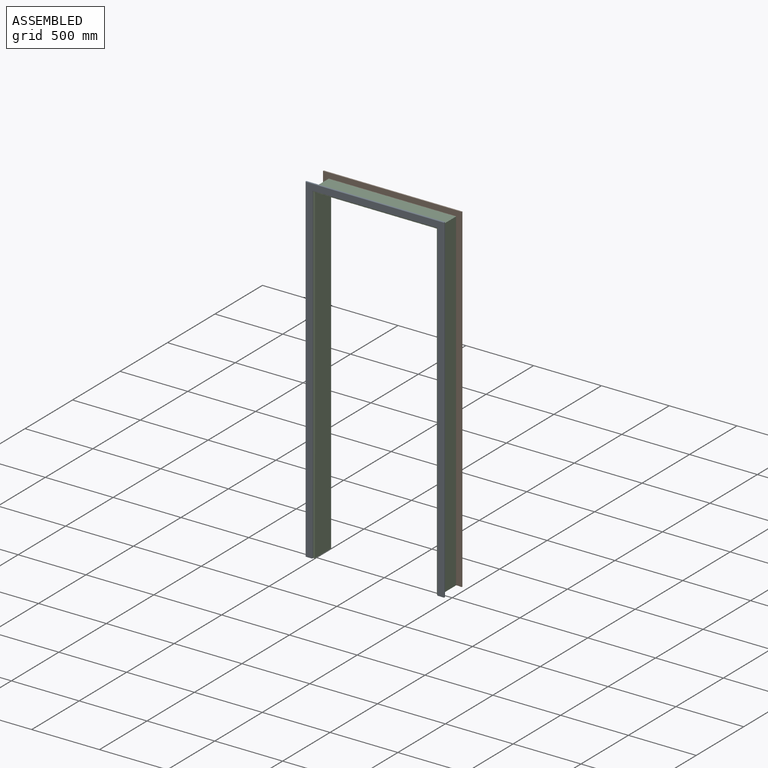
[diagram: assembled view]
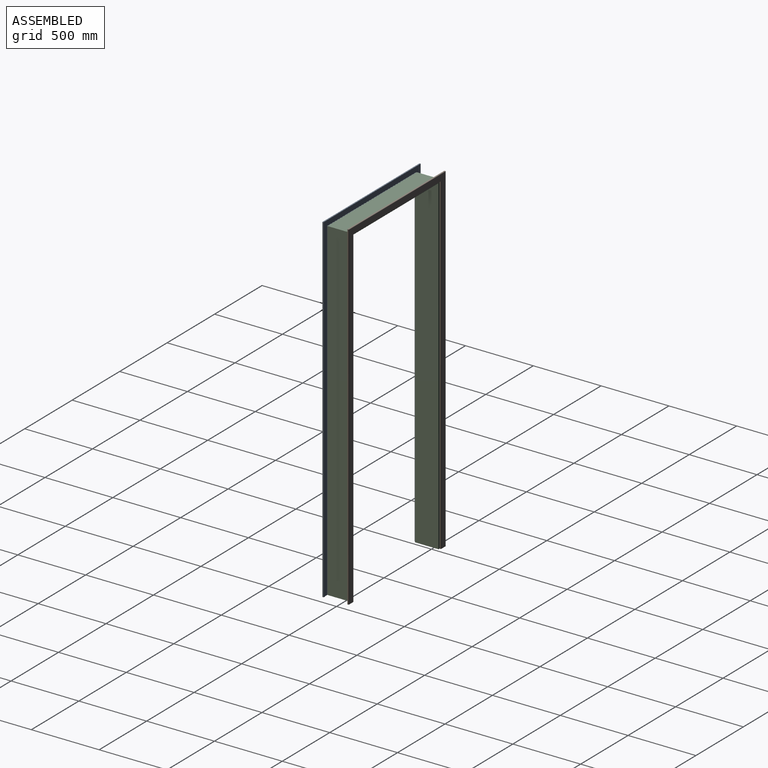
[diagram: assembled view, second angle]
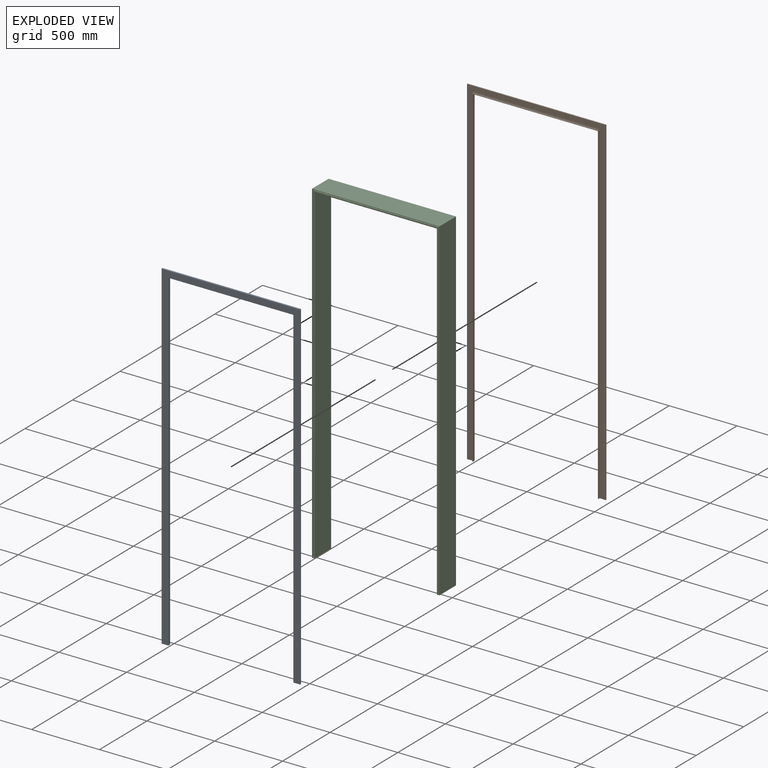
[diagram: exploded view]
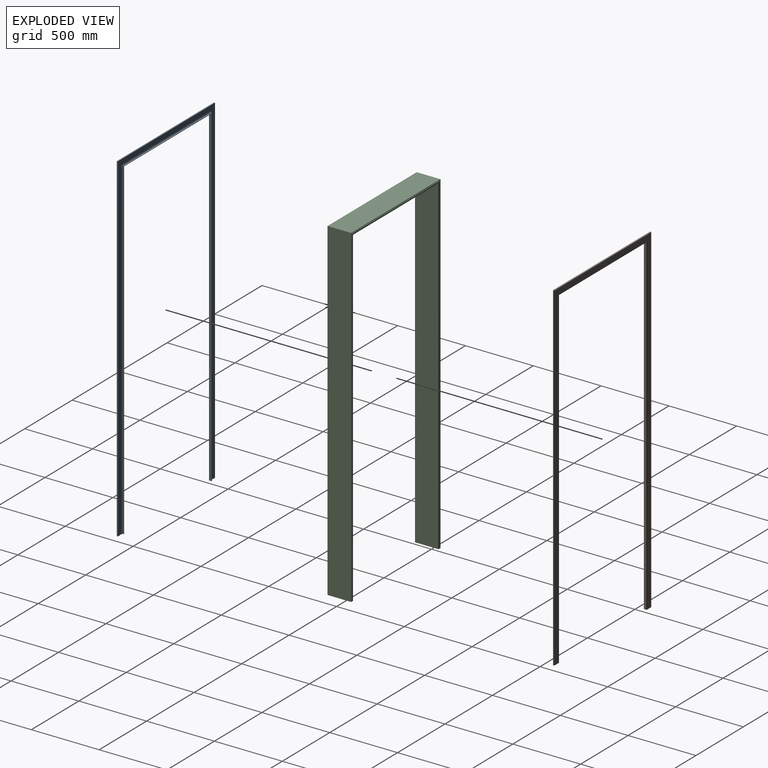
[diagram: exploded view, second angle]
ASSEMBLY  parts=3 mates=2
PART A: 28 faces, bbox 1022x20x2500 mm
  f0: plane 2459.5x941mm, normal (0,1,0), area 32169.5mm2, adj f1,f10,f12,f13,f19,f20,f26,f27
  f1: plane 2454x10mm, normal (-1,0,0), area 24540mm2, adj f0,f2,f12,f19
  f2: plane 2454x930mm, normal (0,1,0), area 23320mm2, adj f1,f3,f12,f18,f19,f20,f21,f27
  f3: plane 2450x18mm, normal (1,0,0), area 44100mm2, adj f2,f4,f12,f18
  f4: cylinder r=2mm len=2452mm, axis (0,0,-1), area 7699.2mm2, adj f3,f5,f12,f17
  f5: plane 2498x1018mm, normal (0,-1,0), area 272412mm2, adj f4,f6,f12,f16,f17,f22,f23,f27
  f6: cylinder r=2mm len=2500mm, axis (0,0,-1), area 7851.7mm2, adj f5,f11,f12,f16
  f7: plane 2500x1022mm, normal (0,1,0), area 89880mm2, adj f8,f11,f12,f14,f15,f24,f25,f27
  f8: plane 2485x2mm, normal (1,0,0), area 4970mm2, adj f7,f9,f12,f14
  f9: plane 2485x992mm, normal (0,1,0), area 150730.5mm2, adj f8,f10,f12,f13,f14,f25,f26,f27
  f10: plane 2459.5x2mm, normal (-1,0,0), area 4919mm2, adj f0,f9,f12,f13
  f11: plane 2500x8mm, normal (-1,0,0), area 20000mm2, adj f6,f7,f12,f15
  f12: plane 50x20mm, normal (0,0,-1), area 487.3mm2, adj f0,f1,f2,f3,f4,f5,f6,f7
  f13: plane 941x2mm, normal (0,0,1), area 1882mm2, adj f0,f9,f10,f26
  f14: plane 992x2mm, normal (0,0,-1), area 1984mm2, adj f7,f8,f9,f25
  f15: plane 1022x8mm, normal (0,0,1), area 8176mm2, adj f7,f11,f16,f24
  f16: cylinder r=2mm len=1022mm, axis (1,0,0), area 3206.1mm2, adj f5,f6,f15,f23
  f17: cylinder r=2mm len=926mm, axis (1,0,0), area 2901.1mm2, adj f4,f5,f18,f22
  f18: plane 922x18mm, normal (0,0,-1), area 16596mm2, adj f2,f3,f17,f21
  f19: plane 930x10mm, normal (0,0,1), area 9300mm2, adj f0,f1,f2,f20
  f20: plane 2454x10mm, normal (1,0,0), area 24540mm2, adj f0,f2,f19,f27
  f21: plane 2450x18mm, normal (-1,0,0), area 44100mm2, adj f2,f18,f22,f27
  f22: cylinder r=2mm len=2452mm, axis (0,0,-1), area 7699.2mm2, adj f5,f17,f21,f27
  f23: cylinder r=2mm len=2500mm, axis (0,0,-1), area 7851.7mm2, adj f5,f16,f24,f27
  f24: plane 2500x8mm, normal (1,0,0), area 20000mm2, adj f7,f15,f23,f27
  f25: plane 2485x2mm, normal (-1,0,0), area 4970mm2, adj f7,f9,f14,f27
  f26: plane 2459.5x2mm, normal (1,0,0), area 4919mm2, adj f0,f9,f13,f27
  f27: plane 50x20mm, normal (0,0,-1), area 487.3mm2, adj f0,f2,f5,f7,f9,f20,f21,f22
PART B: 28 faces, bbox 1022x20x2500 mm
  f0: cylinder r=2mm len=2452mm, axis (0,0,-1), area 7699.2mm2, adj f1,f11,f12,f13
  f1: plane 2450x18mm, normal (-1,0,0), area 44100mm2, adj f0,f2,f12,f14
  f2: plane 2454x930mm, normal (0,-1,0), area 23320mm2, adj f1,f3,f12,f14,f15,f21,f22,f27
  f3: plane 2454x10mm, normal (1,0,0), area 24540mm2, adj f2,f4,f12,f15
  f4: plane 2459.5x941mm, normal (0,-1,0), area 32169.5mm2, adj f3,f5,f12,f15,f16,f22,f23,f27
  f5: plane 2459.5x2mm, normal (1,0,0), area 4919mm2, adj f4,f6,f12,f16
  f6: plane 2485x992mm, normal (0,-1,0), area 150730.5mm2, adj f5,f7,f12,f16,f17,f23,f24,f27
  f7: plane 2485x2mm, normal (-1,0,0), area 4970mm2, adj f6,f8,f12,f17
  f8: plane 2500x1022mm, normal (0,-1,0), area 89880mm2, adj f7,f9,f12,f17,f18,f24,f26,f27
  f9: plane 2500x8mm, normal (1,0,0), area 20000mm2, adj f8,f10,f12,f18
  f10: cylinder r=2mm len=2500mm, axis (0,0,-1), area 7851.7mm2, adj f9,f11,f12,f19
  f11: plane 2498x1018mm, normal (0,1,0), area 272412mm2, adj f0,f10,f12,f13,f19,f20,f25,f27
  f12: plane 50x20mm, normal (0,0,-1), area 487.3mm2, adj f0,f1,f2,f3,f4,f5,f6,f7
  f13: cylinder r=2mm len=926mm, axis (1,0,0), area 2901.1mm2, adj f0,f11,f14,f20
  f14: plane 922x18mm, normal (0,0,-1), area 16596mm2, adj f1,f2,f13,f21
  f15: plane 930x10mm, normal (0,0,1), area 9300mm2, adj f2,f3,f4,f22
  f16: plane 941x2mm, normal (0,0,1), area 1882mm2, adj f4,f5,f6,f23
  f17: plane 992x2mm, normal (0,0,-1), area 1984mm2, adj f6,f7,f8,f24
  f18: plane 1022x8mm, normal (0,0,1), area 8176mm2, adj f8,f9,f19,f26
  f19: cylinder r=2mm len=1022mm, axis (1,0,0), area 3206.1mm2, adj f10,f11,f18,f25
  f20: cylinder r=2mm len=2452mm, axis (0,0,-1), area 7699.2mm2, adj f11,f13,f21,f27
  f21: plane 2450x18mm, normal (1,0,0), area 44100mm2, adj f2,f14,f20,f27
  f22: plane 2454x10mm, normal (-1,0,0), area 24540mm2, adj f2,f4,f15,f27
  f23: plane 2459.5x2mm, normal (-1,0,0), area 4919mm2, adj f4,f6,f16,f27
  f24: plane 2485x2mm, normal (1,0,0), area 4970mm2, adj f6,f8,f17,f27
  f25: cylinder r=2mm len=2500mm, axis (0,0,-1), area 7851.7mm2, adj f11,f19,f26,f27
  f26: plane 2500x8mm, normal (-1,0,0), area 20000mm2, adj f8,f18,f25,f27
  f27: plane 50x20mm, normal (0,0,-1), area 487.3mm2, adj f2,f4,f6,f8,f11,f20,f21,f22
PART C: 32 faces, bbox 940x175x2459 mm
  f0: plane 175x20mm, normal (0,0,-1), area 3338.3mm2, adj f1,f2,f3,f4,f5,f6,f7,f8
  f1: plane 2459x175mm, normal (-1,0,0), area 430325mm2, adj f0,f2,f14,f15
  f2: plane 2459x940mm, normal (0,-1,0), area 29240mm2, adj f0,f1,f3,f15,f16,f29,f30,f31
  f3: plane 2454x20mm, normal (1,0,0), area 49080mm2, adj f0,f2,f4,f16
  f4: plane 2454x930mm, normal (0,-1,0), area 23320mm2, adj f0,f3,f5,f16,f17,f28,f29,f31
  f5: plane 2450x20mm, normal (-1,0,0), area 49000mm2, adj f0,f4,f6,f17
  f6: plane 2450x922mm, normal (0,-1,0), area 52236mm2, adj f0,f5,f7,f17,f18,f27,f28,f31
  f7: cylinder r=2mm len=2441mm, axis (0,0,-1), area 7664.6mm2, adj f0,f6,f8,f18
  f8: plane 2439x171mm, normal (1,0,0), area 417069mm2, adj f0,f7,f9,f19
  f9: cylinder r=2mm len=2441mm, axis (0,0,-1), area 7664.6mm2, adj f0,f8,f10,f20
  f10: plane 2450x922mm, normal (0,1,0), area 52236mm2, adj f0,f9,f11,f20,f21,f24,f25,f31
  f11: plane 2450x20mm, normal (-1,0,0), area 49000mm2, adj f0,f10,f12,f21
  f12: plane 2454x930mm, normal (0,1,0), area 23320mm2, adj f0,f11,f13,f21,f22,f23,f24,f31
  f13: plane 2454x20mm, normal (1,0,0), area 49080mm2, adj f0,f12,f14,f22
  f14: plane 2459x940mm, normal (0,1,0), area 29240mm2, adj f0,f1,f13,f15,f22,f23,f30,f31
  f15: plane 940x175mm, normal (0,0,1), area 164500mm2, adj f1,f2,f14,f30
  f16: plane 930x20mm, normal (0,0,-1), area 18600mm2, adj f2,f3,f4,f29
  f17: plane 922x20mm, normal (0,0,1), area 18440mm2, adj f4,f5,f6,f28
  f18: cylinder r=2mm len=904mm, axis (1,0,0), area 2832mm2, adj f6,f7,f19,f27
  f19: plane 900x171mm, normal (0,0,-1), area 153900mm2, adj f8,f18,f20,f26
  f20: cylinder r=2mm len=904mm, axis (1,0,0), area 2832mm2, adj f9,f10,f19,f25
  f21: plane 922x20mm, normal (0,0,1), area 18440mm2, adj f10,f11,f12,f24
  f22: plane 930x20mm, normal (0,0,-1), area 18600mm2, adj f12,f13,f14,f23
  f23: plane 2454x20mm, normal (-1,0,0), area 49080mm2, adj f12,f14,f22,f31
  f24: plane 2450x20mm, normal (1,0,0), area 49000mm2, adj f10,f12,f21,f31
  f25: cylinder r=2mm len=2441mm, axis (0,0,-1), area 7664.6mm2, adj f10,f20,f26,f31
  f26: plane 2439x171mm, normal (-1,0,0), area 417069mm2, adj f19,f25,f27,f31
  f27: cylinder r=2mm len=2441mm, axis (0,0,-1), area 7664.6mm2, adj f6,f18,f26,f31
  f28: plane 2450x20mm, normal (1,0,0), area 49000mm2, adj f4,f6,f17,f31
  f29: plane 2454x20mm, normal (-1,0,0), area 49080mm2, adj f2,f4,f16,f31
  f30: plane 2459x175mm, normal (1,0,0), area 430325mm2, adj f2,f14,f15,f31
  f31: plane 175x20mm, normal (0,0,-1), area 3338.3mm2, adj f2,f4,f6,f10,f12,f14,f23,f24
PLACE A t=(448.3,-1.06,-1250.23)mm
PLACE B t=(448.3,-1.06,-1250.23)mm
PLACE C t=(448.3,-1.06,-1250.23)mm fixed
MATE slider B.f2 <-> C.f12  axis (0,-1,0) through (-1.7,76.44,170.5)mm
MATE slider C.f4 <-> A.f2  axis (0,-1,0) through (-1.7,-68.56,170.5)mm
